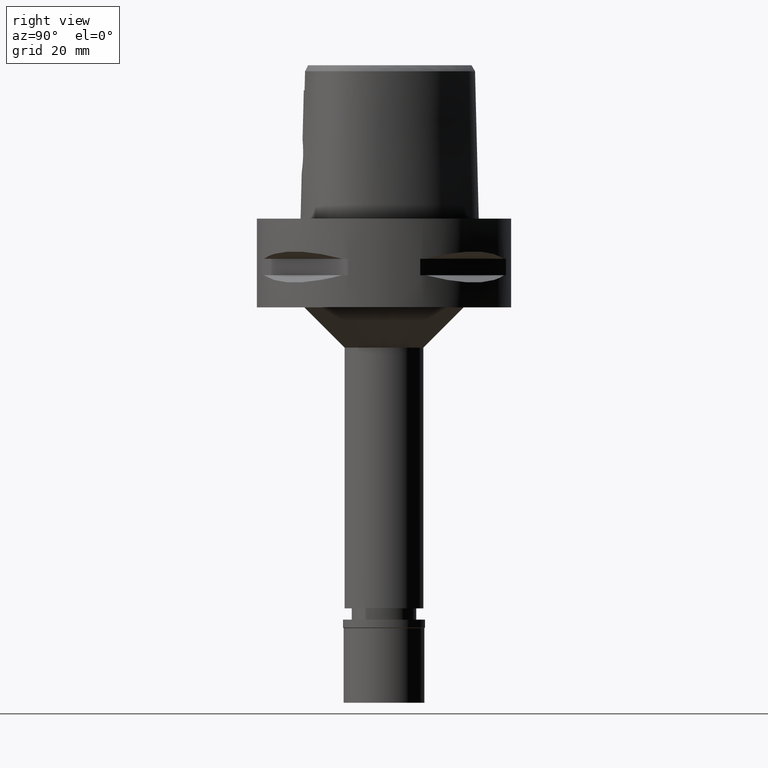
[diagram: clean part render]
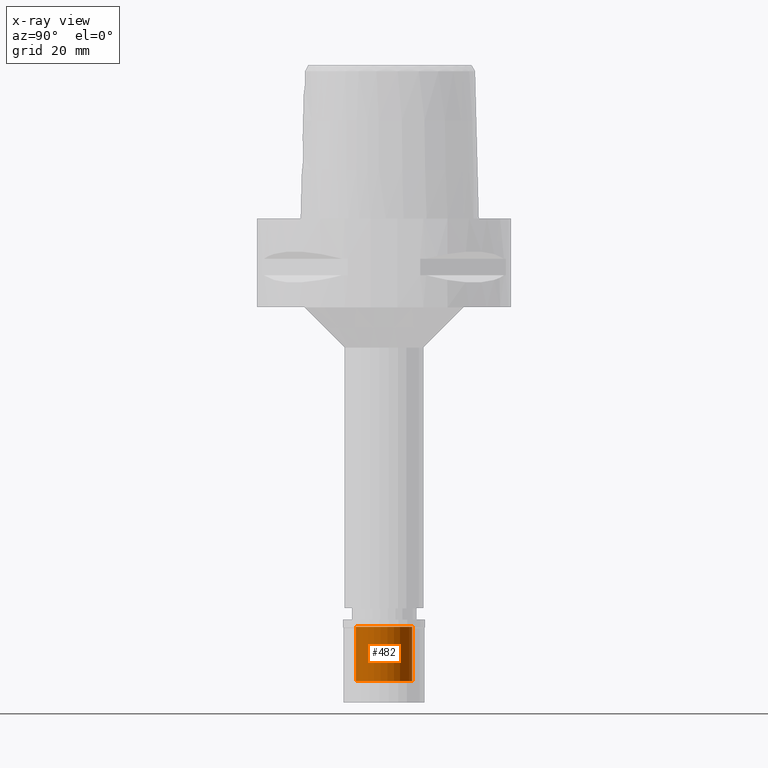
[diagram: x-ray — body ghosted, one internal face saturated and labeled with its STEP entity id]
A machine part, right view, then the same camera in x-ray: the body is ghosted and one INTERNAL B-rep face — a face not visible from any outside direction — is saturated and labeled: STEP entity #482.
In plain terms, the highlighted cylindrical surface (edge-blend (fillet) strip) has radius 7 mm, axis along (0, 0, -1).
Its self-contained STEP definition (entity closure, byte-faithful):
#17 = DIRECTION ( 'NONE',  ( 0.0000000000000000000, 0.0000000000000000000, -1.000000000000000000 ) ) ;
#482 = ADVANCED_FACE ( 'NONE', ( #1869 ), #820, .F. ) ;
#539 = CARTESIAN_POINT ( 'NONE',  ( 0.0000000000000000000, -7.000000000000000000, -15.29999999999999893 ) ) ;
#608 = CIRCLE ( 'NONE', #2416, 7.000000000000000000 ) ;
#706 = DIRECTION ( 'NONE',  ( 0.0000000000000000000, 1.000000000000000000, 0.0000000000000000000 ) ) ;
#820 = CYLINDRICAL_SURFACE ( 'NONE', #3442, 7.000000000000000000 ) ;
#936 = ORIENTED_EDGE ( 'NONE', *, *, #2193, .T. ) ;
#1157 = CIRCLE ( 'NONE', #4041, 7.000000000000000000 ) ;
#1190 = VERTEX_POINT ( 'NONE', #3098 ) ;
#1313 = VERTEX_POINT ( 'NONE', #4368 ) ;
#1341 = DIRECTION ( 'NONE',  ( 0.0000000000000000000, 0.0000000000000000000, 1.000000000000000000 ) ) ;
#1456 = ORIENTED_EDGE ( 'NONE', *, *, #4971, .T. ) ;
#1718 = CARTESIAN_POINT ( 'NONE',  ( 0.0000000000000000000, 7.000000000000000000, -15.29999999999999893 ) ) ;
#1869 = FACE_OUTER_BOUND ( 'NONE', #2133, .T. ) ;
#1885 = VERTEX_POINT ( 'NONE', #2624 ) ;
#1887 = DIRECTION ( 'NONE',  ( 0.0000000000000000000, 0.0000000000000000000, 1.000000000000000000 ) ) ;
#1947 = CARTESIAN_POINT ( 'NONE',  ( 0.0000000000000000000, 0.0000000000000000000, 0.0000000000000000000 ) ) ;
#2016 = VECTOR ( 'NONE', #1341, 1000.000000000000000 ) ;
#2025 = ORIENTED_EDGE ( 'NONE', *, *, #2713, .T. ) ;
#2027 = DIRECTION ( 'NONE',  ( 0.0000000000000000000, 0.0000000000000000000, 1.000000000000000000 ) ) ;
#2087 = DIRECTION ( 'NONE',  ( 0.0000000000000000000, -1.000000000000000000, 0.0000000000000000000 ) ) ;
#2133 = EDGE_LOOP ( 'NONE', ( #2025, #936, #1456, #3610 ) ) ;
#2193 = EDGE_CURVE ( 'NONE', #2279, #1313, #3607, .T. ) ;
#2279 = VERTEX_POINT ( 'NONE', #2909 ) ;
#2416 = AXIS2_PLACEMENT_3D ( 'NONE', #4663, #17, #706 ) ;
#2624 = CARTESIAN_POINT ( 'NONE',  ( 0.0000000000000000000, 7.000000000000000000, -1.800000000000000044 ) ) ;
#2713 = EDGE_CURVE ( 'NONE', #1190, #2279, #608, .T. ) ;
#2745 = VECTOR ( 'NONE', #2027, 1000.000000000000000 ) ;
#2909 = CARTESIAN_POINT ( 'NONE',  ( 0.0000000000000000000, -7.000000000000000000, -15.29999999999999893 ) ) ;
#3098 = CARTESIAN_POINT ( 'NONE',  ( 0.0000000000000000000, 7.000000000000000000, -15.29999999999999893 ) ) ;
#3376 = LINE ( 'NONE', #1718, #2016 ) ;
#3442 = AXIS2_PLACEMENT_3D ( 'NONE', #1947, #3520, #3826 ) ;
#3520 = DIRECTION ( 'NONE',  ( 0.0000000000000000000, 0.0000000000000000000, -1.000000000000000000 ) ) ;
#3607 = LINE ( 'NONE', #539, #2745 ) ;
#3610 = ORIENTED_EDGE ( 'NONE', *, *, #4037, .F. ) ;
#3826 = DIRECTION ( 'NONE',  ( 0.0000000000000000000, -1.000000000000000000, 0.0000000000000000000 ) ) ;
#4037 = EDGE_CURVE ( 'NONE', #1190, #1885, #3376, .T. ) ;
#4041 = AXIS2_PLACEMENT_3D ( 'NONE', #4155, #1887, #2087 ) ;
#4155 = CARTESIAN_POINT ( 'NONE',  ( 0.0000000000000000000, 0.0000000000000000000, -1.800000000000000044 ) ) ;
#4368 = CARTESIAN_POINT ( 'NONE',  ( 0.0000000000000000000, -7.000000000000000000, -1.800000000000000044 ) ) ;
#4663 = CARTESIAN_POINT ( 'NONE',  ( 0.0000000000000000000, 0.0000000000000000000, -15.29999999999999893 ) ) ;
#4971 = EDGE_CURVE ( 'NONE', #1313, #1885, #1157, .T. ) ;